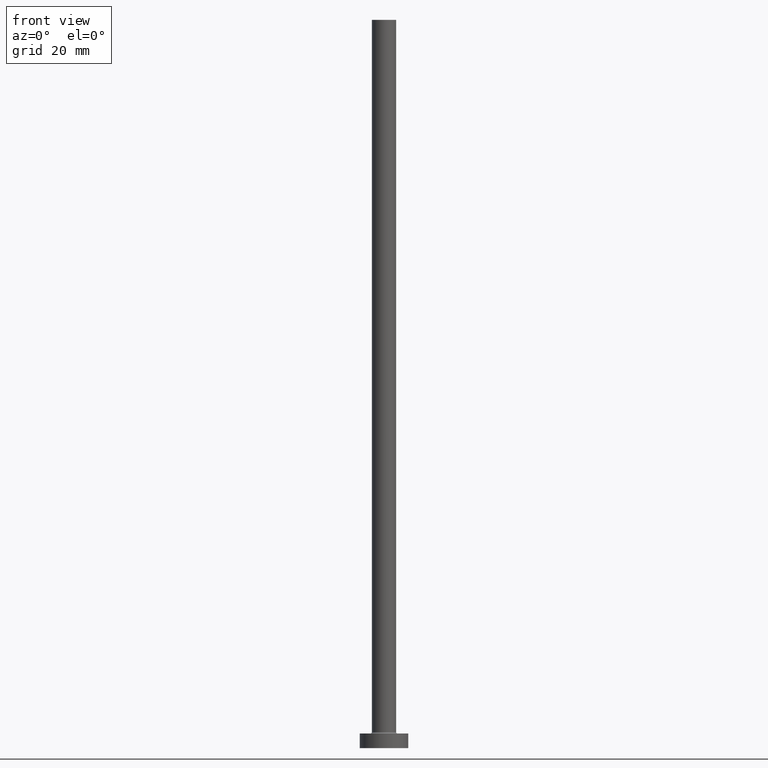
[diagram: clean part render]
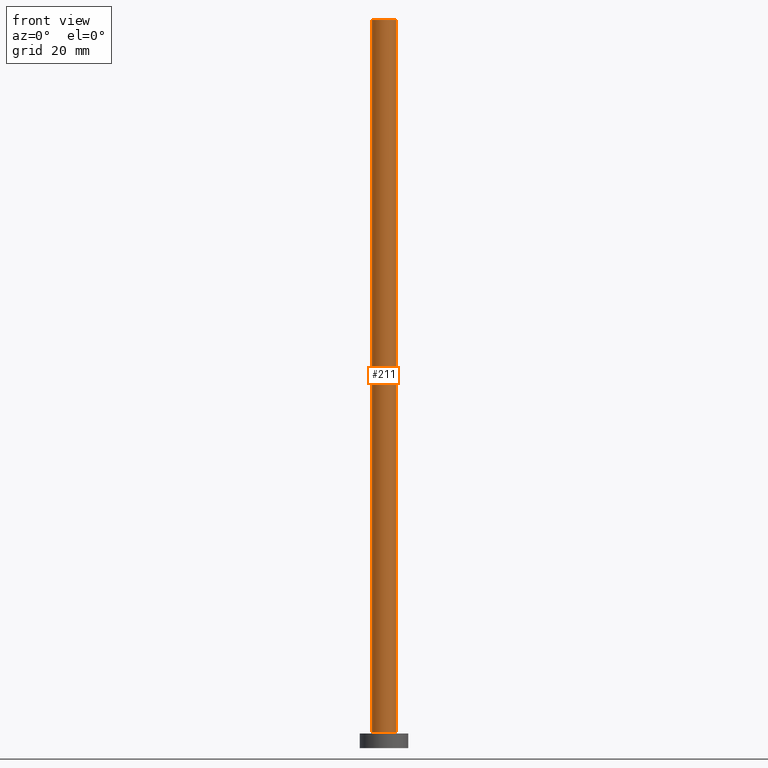
[diagram: same view with one face highlighted and labeled with its STEP entity id]
A machine part, front view. The second image highlights one B-rep face of the part: STEP entity #211.
In plain terms, the highlighted cylindrical surface (edge-blend (fillet) strip) has radius 2.5 mm, axis along (-0, -0, -1).
Its self-contained STEP definition (entity closure, byte-faithful):
#5 = DIRECTION ( 'NONE',  ( 0.000000000000000000, 0.000000000000000000, 1.000000000000000000 ) ) ;
#16 = FACE_OUTER_BOUND ( 'NONE', #176, .T. ) ;
#29 = ORIENTED_EDGE ( 'NONE', *, *, #255, .T. ) ;
#34 = VECTOR ( 'NONE', #180, 1000.000000000000000 ) ;
#55 = AXIS2_PLACEMENT_3D ( 'NONE', #142, #5, #149 ) ;
#56 = CYLINDRICAL_SURFACE ( 'NONE', #117, 2.500000000000000000 ) ;
#65 = ORIENTED_EDGE ( 'NONE', *, *, #384, .F. ) ;
#67 = VERTEX_POINT ( 'NONE', #387 ) ;
#91 = VERTEX_POINT ( 'NONE', #389 ) ;
#99 = CARTESIAN_POINT ( 'NONE',  ( 2.500000000000000000, 3.061616997868383141E-16, 3.299999999999997158 ) ) ;
#116 = EDGE_CURVE ( 'NONE', #91, #414, #312, .T. ) ;
#117 = AXIS2_PLACEMENT_3D ( 'NONE', #345, #203, #411 ) ;
#142 = CARTESIAN_POINT ( 'NONE',  ( 0.000000000000000000, 0.000000000000000000, 3.299999999999997158 ) ) ;
#146 = VECTOR ( 'NONE', #163, 1000.000000000000000 ) ;
#149 = DIRECTION ( 'NONE',  ( 1.000000000000000000, 0.000000000000000000, 0.000000000000000000 ) ) ;
#163 = DIRECTION ( 'NONE',  ( -0.000000000000000000, -0.000000000000000000, -1.000000000000000000 ) ) ;
#176 = EDGE_LOOP ( 'NONE', ( #65, #212, #29, #449 ) ) ;
#180 = DIRECTION ( 'NONE',  ( -0.000000000000000000, -0.000000000000000000, -1.000000000000000000 ) ) ;
#196 = CARTESIAN_POINT ( 'NONE',  ( -2.500000000000000000, 0.000000000000000000, 150.0000000000000000 ) ) ;
#203 = DIRECTION ( 'NONE',  ( -0.000000000000000000, -0.000000000000000000, -1.000000000000000000 ) ) ;
#209 = CARTESIAN_POINT ( 'NONE',  ( 2.500000000000000000, 3.061616997868383141E-16, 150.0000000000000000 ) ) ;
#211 = ADVANCED_FACE ( 'NONE', ( #16 ), #56, .T. ) ;
#212 = ORIENTED_EDGE ( 'NONE', *, *, #337, .F. ) ;
#236 = LINE ( 'NONE', #196, #146 ) ;
#242 = CIRCLE ( 'NONE', #301, 2.500000000000000000 ) ;
#255 = EDGE_CURVE ( 'NONE', #351, #91, #236, .T. ) ;
#301 = AXIS2_PLACEMENT_3D ( 'NONE', #373, #386, #380 ) ;
#312 = CIRCLE ( 'NONE', #55, 2.500000000000000000 ) ;
#319 = CARTESIAN_POINT ( 'NONE',  ( -2.500000000000000000, 0.000000000000000000, 150.0000000000000000 ) ) ;
#337 = EDGE_CURVE ( 'NONE', #351, #67, #242, .T. ) ;
#345 = CARTESIAN_POINT ( 'NONE',  ( 0.000000000000000000, 0.000000000000000000, 150.0000000000000000 ) ) ;
#351 = VERTEX_POINT ( 'NONE', #319 ) ;
#373 = CARTESIAN_POINT ( 'NONE',  ( 0.000000000000000000, 0.000000000000000000, 150.0000000000000000 ) ) ;
#380 = DIRECTION ( 'NONE',  ( 1.000000000000000000, 0.000000000000000000, 0.000000000000000000 ) ) ;
#383 = LINE ( 'NONE', #209, #34 ) ;
#384 = EDGE_CURVE ( 'NONE', #67, #414, #383, .T. ) ;
#386 = DIRECTION ( 'NONE',  ( 0.000000000000000000, 0.000000000000000000, 1.000000000000000000 ) ) ;
#387 = CARTESIAN_POINT ( 'NONE',  ( 2.500000000000000000, 3.061616997868383141E-16, 150.0000000000000000 ) ) ;
#389 = CARTESIAN_POINT ( 'NONE',  ( -2.500000000000000000, 0.000000000000000000, 3.299999999999997158 ) ) ;
#411 = DIRECTION ( 'NONE',  ( -1.000000000000000000, 0.000000000000000000, 0.000000000000000000 ) ) ;
#414 = VERTEX_POINT ( 'NONE', #99 ) ;
#449 = ORIENTED_EDGE ( 'NONE', *, *, #116, .T. ) ;